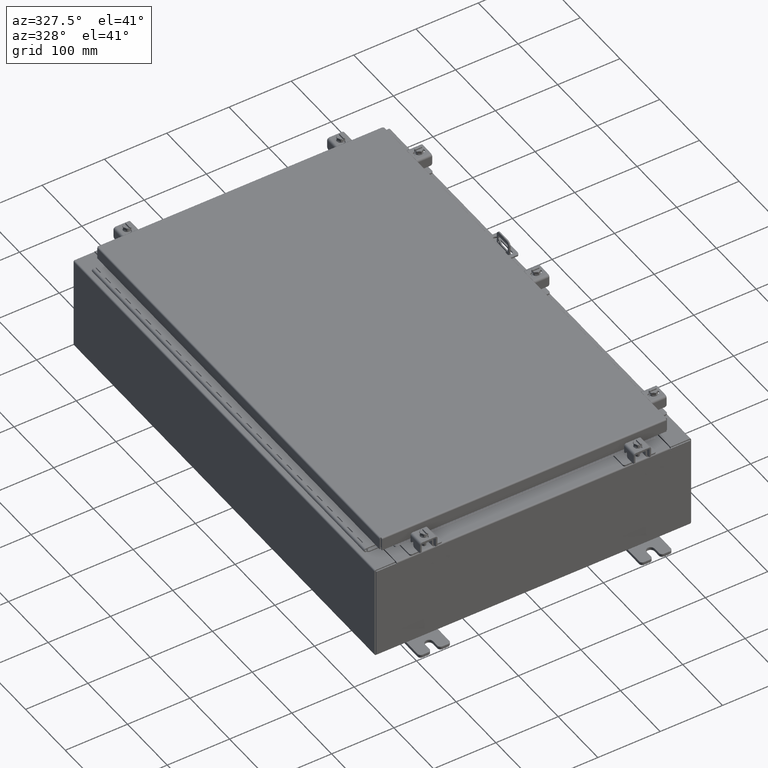
[diagram: clean part render]
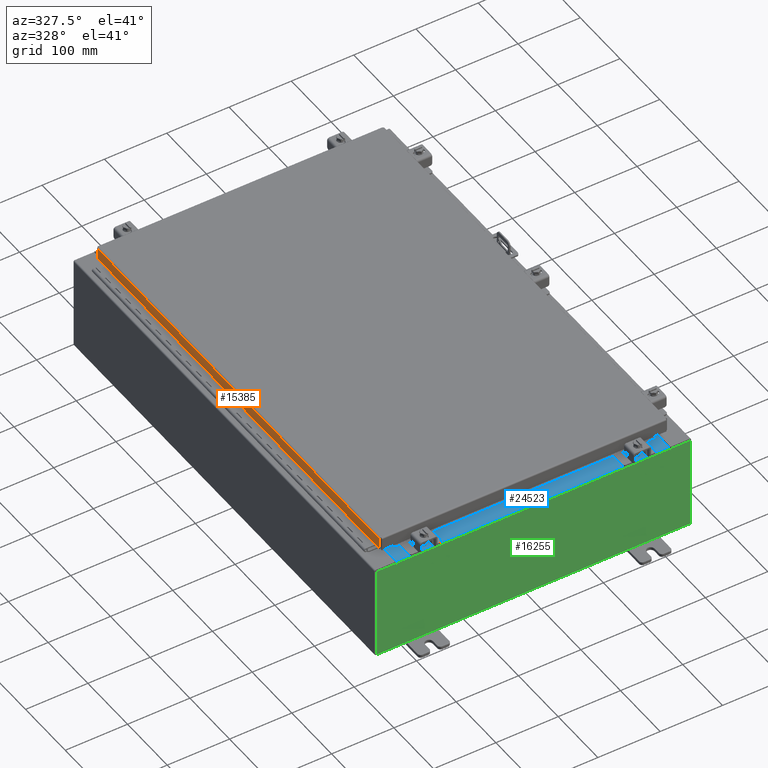
[diagram: same view with three faces highlighted in distinct colors, each labeled with its STEP entity id]
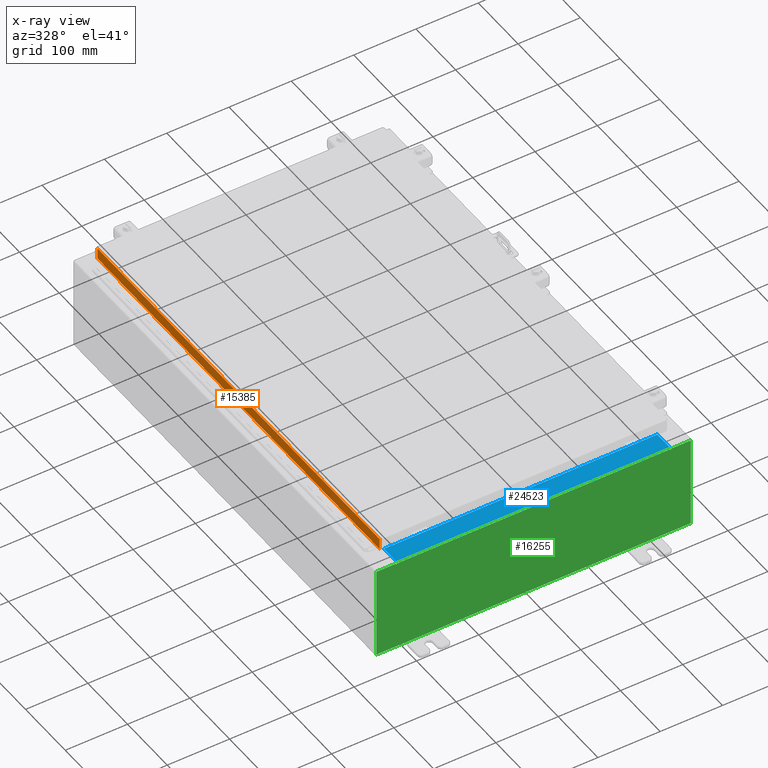
[diagram: x-ray of the same camera — body ghosted, the three highlighted faces saturated]
A machine part, auxiliary view with three faces highlighted in distinct colors.
The next image is the same camera in x-ray (body ghosted, the three faces saturated) — at least one of them is partly hidden behind the body in this view.
Their STEP definitions:

[orange] entity #15385 — the highlighted planar face has unit normal (1, 0, -0).
#1469 = LINE ( 'NONE', #34045, #12245 ) ;
#4339 = CARTESIAN_POINT ( 'NONE',  ( -9.077999999999997600, 14.00515786437626900, 1.256020718460122500E-013 ) ) ;
#6147 = FACE_OUTER_BOUND ( 'NONE', #28262, .T. ) ;
#8468 = CARTESIAN_POINT ( 'NONE',  ( -9.077999999999997600, -3.336764542172729700E-030, 2.780457718396846400E-014 ) ) ;
#9129 = ORIENTED_EDGE ( 'NONE', *, *, #20751, .F. ) ;
#10952 = ORIENTED_EDGE ( 'NONE', *, *, #31150, .F. ) ;
#11820 = EDGE_CURVE ( 'NONE', #17326, #21280, #24468, .T. ) ;
#12245 = VECTOR ( 'NONE', #34466, 39.37007874015748100 ) ;
#12631 = CARTESIAN_POINT ( 'NONE',  ( -9.077999999999997600, 14.00515786437626900, -0.08770000000000004200 ) ) ;
#13285 = DIRECTION ( 'NONE',  ( 3.675660434206577100E-031, -1.000000000000000000, -1.083515668565077200E-045 ) ) ;
#13877 = LINE ( 'NONE', #26205, #31252 ) ;
#13969 = ORIENTED_EDGE ( 'NONE', *, *, #11820, .F. ) ;
#15385 = ADVANCED_FACE ( 'NONE', ( #6147 ), #37538, .F. ) ;
#17176 = ORIENTED_EDGE ( 'NONE', *, *, #35342, .T. ) ;
#17326 = VERTEX_POINT ( 'NONE', #18589 ) ;
#17829 = DIRECTION ( 'NONE',  ( -3.034122441942816500E-015, 0.0000000000000000000, -1.000000000000000000 ) ) ;
#18589 = CARTESIAN_POINT ( 'NONE',  ( -9.077999999999997600, -14.00515786437626400, -0.08770000000000007000 ) ) ;
#20017 = LINE ( 'NONE', #4339, #28736 ) ;
#20253 = VERTEX_POINT ( 'NONE', #36528 ) ;
#20751 = EDGE_CURVE ( 'NONE', #21280, #20253, #1469, .T. ) ;
#21280 = VERTEX_POINT ( 'NONE', #22930 ) ;
#21591 = DIRECTION ( 'NONE',  ( -3.034122441942816500E-015, 6.982962677686265900E-015, -1.000000000000000000 ) ) ;
#22930 = CARTESIAN_POINT ( 'NONE',  ( -9.077999999999999400, -14.00515786437626200, -0.7949999999999996000 ) ) ;
#24468 = LINE ( 'NONE', #25399, #36440 ) ;
#24815 = DIRECTION ( 'NONE',  ( -3.034122441942816500E-015, 6.982962677686265900E-015, -1.000000000000000000 ) ) ;
#25399 = CARTESIAN_POINT ( 'NONE',  ( -9.077999999999997600, -14.00515786437626500, -0.07469999999999976700 ) ) ;
#26205 = CARTESIAN_POINT ( 'NONE',  ( -9.077999999999997600, -14.09399999999999600, -0.08770000000000004200 ) ) ;
#28262 = EDGE_LOOP ( 'NONE', ( #10952, #17176, #9129, #13969 ) ) ;
#28736 = VECTOR ( 'NONE', #24815, 39.37007874015748100 ) ;
#31150 = EDGE_CURVE ( 'NONE', #33934, #17326, #13877, .T. ) ;
#31252 = VECTOR ( 'NONE', #13285, 39.37007874015748100 ) ;
#31965 = AXIS2_PLACEMENT_3D ( 'NONE', #8468, #37297, #17829 ) ;
#33934 = VERTEX_POINT ( 'NONE', #12631 ) ;
#34045 = CARTESIAN_POINT ( 'NONE',  ( -9.077999999999999400, -14.09399999999999600, -0.7949999999999997100 ) ) ;
#34466 = DIRECTION ( 'NONE',  ( -4.379057701015054300E-047, 1.000000000000000000, 1.211441035930299800E-016 ) ) ;
#35342 = EDGE_CURVE ( 'NONE', #33934, #20253, #20017, .T. ) ;
#36440 = VECTOR ( 'NONE', #21591, 39.37007874015748100 ) ;
#36528 = CARTESIAN_POINT ( 'NONE',  ( -9.077999999999999400, 14.00515786437627400, -0.7949999999999962700 ) ) ;
#37297 = DIRECTION ( 'NONE',  ( 1.000000000000000000, 3.675660434206576600E-031, -3.034122441942816500E-015 ) ) ;
#37538 = PLANE ( 'NONE',  #31965 ) ;

[blue] entity #24523 — the highlighted planar face has unit normal (-0, -0, 1).
#454 = CARTESIAN_POINT ( 'NONE',  ( 0.0000000000000000000, 1.069354855923099900E-014, 3.000000000000000900 ) ) ;
#522 = LINE ( 'NONE', #8291, #25770 ) ;
#2180 = VERTEX_POINT ( 'NONE', #5913 ) ;
#3838 = VERTEX_POINT ( 'NONE', #25066 ) ;
#4649 = EDGE_CURVE ( 'NONE', #28949, #3838, #12717, .T. ) ;
#5092 = EDGE_CURVE ( 'NONE', #28949, #2180, #11940, .T. ) ;
#5913 = CARTESIAN_POINT ( 'NONE',  ( 8.637200000000000000, -1.287299999999999900, 3.000000000000005300 ) ) ;
#8291 = CARTESIAN_POINT ( 'NONE',  ( -8.637200000000000000, -0.07469999999999973900, 3.000000000000000900 ) ) ;
#8905 = ORIENTED_EDGE ( 'NONE', *, *, #21902, .F. ) ;
#9066 = PLANE ( 'NONE',  #31442 ) ;
#11717 = LINE ( 'NONE', #37253, #34172 ) ;
#11940 = LINE ( 'NONE', #30186, #30328 ) ;
#12717 = LINE ( 'NONE', #18981, #33620 ) ;
#13778 = DIRECTION ( 'NONE',  ( -0.0000000000000000000, -1.000000000000000000, 3.566381192773190000E-015 ) ) ;
#15596 = ORIENTED_EDGE ( 'NONE', *, *, #5092, .F. ) ;
#16007 = ORIENTED_EDGE ( 'NONE', *, *, #4649, .T. ) ;
#18186 = DIRECTION ( 'NONE',  ( -0.0000000000000000000, 1.000000000000000000, -3.566381192773190000E-015 ) ) ;
#18981 = CARTESIAN_POINT ( 'NONE',  ( -2.773851121247453900E-018, -0.08770000000000000000, 3.000000000000001300 ) ) ;
#21902 = EDGE_CURVE ( 'NONE', #22612, #3838, #522, .T. ) ;
#22612 = VERTEX_POINT ( 'NONE', #27695 ) ;
#23101 = DIRECTION ( 'NONE',  ( 0.0000000000000000000, 3.566381192773190000E-015, 1.000000000000000000 ) ) ;
#24141 = CARTESIAN_POINT ( 'NONE',  ( 8.637200000000000000, -0.08769999999999965300, 3.000000000000000900 ) ) ;
#24358 = ORIENTED_EDGE ( 'NONE', *, *, #36088, .F. ) ;
#24523 = ADVANCED_FACE ( 'NONE', ( #35268 ), #9066, .T. ) ;
#25066 = CARTESIAN_POINT ( 'NONE',  ( -8.637200000000000000, -0.08770000000000000000, 3.000000000000000900 ) ) ;
#25770 = VECTOR ( 'NONE', #18186, 39.37007874015748100 ) ;
#27695 = CARTESIAN_POINT ( 'NONE',  ( -8.637200000000000000, -1.287299999999999200, 3.000000000000005300 ) ) ;
#27965 = DIRECTION ( 'NONE',  ( -1.000000000000000000, 3.162886113166609200E-017, -1.128005754888089100E-031 ) ) ;
#28949 = VERTEX_POINT ( 'NONE', #24141 ) ;
#30186 = CARTESIAN_POINT ( 'NONE',  ( 8.637200000000000000, -1.300299999999999800, 3.000000000000005300 ) ) ;
#30328 = VECTOR ( 'NONE', #13778, 39.37007874015748100 ) ;
#30344 = EDGE_LOOP ( 'NONE', ( #8905, #24358, #15596, #16007 ) ) ;
#30923 = DIRECTION ( 'NONE',  ( 0.0000000000000000000, -1.000000000000000000, 3.566381192773190000E-015 ) ) ;
#31442 = AXIS2_PLACEMENT_3D ( 'NONE', #454, #23101, #30923 ) ;
#33620 = VECTOR ( 'NONE', #27965, 39.37007874015748100 ) ;
#34172 = VECTOR ( 'NONE', #34296, 39.37007874015748100 ) ;
#34296 = DIRECTION ( 'NONE',  ( -1.000000000000000000, 0.0000000000000000000, 0.0000000000000000000 ) ) ;
#35268 = FACE_OUTER_BOUND ( 'NONE', #30344, .T. ) ;
#36088 = EDGE_CURVE ( 'NONE', #2180, #22612, #11717, .T. ) ;
#37253 = CARTESIAN_POINT ( 'NONE',  ( 8.637200000000000000, -1.287299999999999900, 3.000000000000005300 ) ) ;

[green] entity #16255 — the highlighted planar face has unit normal (-0, 1, -0).
#130 = ORIENTED_EDGE ( 'NONE', *, *, #30859, .F. ) ;
#323 = AXIS2_PLACEMENT_3D ( 'NONE', #1770, #19673, #25433 ) ;
#734 = VERTEX_POINT ( 'NONE', #28620 ) ;
#1147 = VERTEX_POINT ( 'NONE', #21977 ) ;
#1571 = ORIENTED_EDGE ( 'NONE', *, *, #37172, .F. ) ;
#1645 = ORIENTED_EDGE ( 'NONE', *, *, #5262, .T. ) ;
#1770 = CARTESIAN_POINT ( 'NONE',  ( 0.0000000000000000000, 0.0000000000000000000, 0.0000000000000000000 ) ) ;
#1797 = EDGE_CURVE ( 'NONE', #8697, #3264, #19403, .T. ) ;
#2116 = VECTOR ( 'NONE', #14074, 39.37007874015748100 ) ;
#3264 = VERTEX_POINT ( 'NONE', #19226 ) ;
#3842 = VECTOR ( 'NONE', #30056, 39.37007874015748100 ) ;
#4280 = EDGE_CURVE ( 'NONE', #31658, #37245, #23929, .T. ) ;
#4702 = DIRECTION ( 'NONE',  ( -1.000000000000000000, -0.0000000000000000000, -0.0000000000000000000 ) ) ;
#5262 = EDGE_CURVE ( 'NONE', #10926, #19727, #29521, .T. ) ;
#5316 = CARTESIAN_POINT ( 'NONE',  ( -9.925300000000000000, 0.0000000000000000000, 2.925300000000000500 ) ) ;
#5502 = DIRECTION ( 'NONE',  ( -6.510859170600007400E-014, 0.0000000000000000000, -1.000000000000000000 ) ) ;
#5540 = VECTOR ( 'NONE', #23627, 39.37007874015748100 ) ;
#5622 = LINE ( 'NONE', #30078, #22094 ) ;
#5887 = ORIENTED_EDGE ( 'NONE', *, *, #4280, .T. ) ;
#5991 = CARTESIAN_POINT ( 'NONE',  ( -8.674549999999996400, 0.0000000000000000000, 2.874950000000000600 ) ) ;
#6050 = EDGE_CURVE ( 'NONE', #734, #6763, #19792, .T. ) ;
#6763 = VERTEX_POINT ( 'NONE', #29933 ) ;
#7101 = VECTOR ( 'NONE', #37648, 39.37007874015748100 ) ;
#7135 = DIRECTION ( 'NONE',  ( -0.0000000000000000000, 1.000000000000000000, -0.0000000000000000000 ) ) ;
#7579 = PLANE ( 'NONE',  #323 ) ;
#7679 = VECTOR ( 'NONE', #4702, 39.37007874015748100 ) ;
#8159 = VECTOR ( 'NONE', #36762, 39.37007874015748100 ) ;
#8308 = EDGE_CURVE ( 'NONE', #3264, #10926, #10724, .T. ) ;
#8440 = CARTESIAN_POINT ( 'NONE',  ( 9.925300000000000000, 0.0000000000000000000, 2.925300000000000500 ) ) ;
#8697 = VERTEX_POINT ( 'NONE', #25506 ) ;
#9111 = CARTESIAN_POINT ( 'NONE',  ( -8.637199999999996400, -0.0000000000000000000, 0.0000000000000000000 ) ) ;
#9325 = ORIENTED_EDGE ( 'NONE', *, *, #1797, .T. ) ;
#9722 = VERTEX_POINT ( 'NONE', #20261 ) ;
#10724 = LINE ( 'NONE', #31503, #3842 ) ;
#10926 = VERTEX_POINT ( 'NONE', #30725 ) ;
#10967 = CARTESIAN_POINT ( 'NONE',  ( 8.655875000000000000, 0.0000000000000000000, 2.874950000000000600 ) ) ;
#11235 = ORIENTED_EDGE ( 'NONE', *, *, #6050, .F. ) ;
#11310 = DIRECTION ( 'NONE',  ( 1.000000000000000000, 0.0000000000000000000, 0.0000000000000000000 ) ) ;
#11436 = VERTEX_POINT ( 'NONE', #8440 ) ;
#12775 = CARTESIAN_POINT ( 'NONE',  ( -8.637199999999996400, 1.024442997624098700E-016, 2.912300000000000600 ) ) ;
#12910 = ORIENTED_EDGE ( 'NONE', *, *, #19483, .F. ) ;
#13396 = CARTESIAN_POINT ( 'NONE',  ( 9.925300000000000000, 0.0000000000000000000, 2.925300000000000500 ) ) ;
#14074 = DIRECTION ( 'NONE',  ( 0.0000000000000000000, 0.0000000000000000000, 1.000000000000000000 ) ) ;
#14532 = ORIENTED_EDGE ( 'NONE', *, *, #8308, .T. ) ;
#15303 = EDGE_CURVE ( 'NONE', #11436, #8697, #25868, .T. ) ;
#15350 = EDGE_CURVE ( 'NONE', #9722, #11436, #30408, .T. ) ;
#16208 = CARTESIAN_POINT ( 'NONE',  ( -8.674549999999996400, -0.0000000000000000000, 0.0000000000000000000 ) ) ;
#16255 = ADVANCED_FACE ( 'NONE', ( #34896 ), #7579, .F. ) ;
#16868 = CARTESIAN_POINT ( 'NONE',  ( -8.637200000000000000, 1.024442997624098700E-016, 2.912300000000000600 ) ) ;
#17116 = LINE ( 'NONE', #9111, #24868 ) ;
#19226 = CARTESIAN_POINT ( 'NONE',  ( -9.925300000000000000, 0.0000000000000000000, -2.925299999999999600 ) ) ;
#19376 = DIRECTION ( 'NONE',  ( -0.0000000000000000000, 1.000000000000000000, -0.0000000000000000000 ) ) ;
#19403 = LINE ( 'NONE', #37282, #7679 ) ;
#19483 = EDGE_CURVE ( 'NONE', #9722, #734, #5622, .T. ) ;
#19673 = DIRECTION ( 'NONE',  ( 0.0000000000000000000, -1.000000000000000000, 0.0000000000000000000 ) ) ;
#19727 = VERTEX_POINT ( 'NONE', #31061 ) ;
#19792 = CIRCLE ( 'NONE', #36412, 0.01867500000000003900 ) ;
#19877 = DIRECTION ( 'NONE',  ( 0.0000000000000000000, 0.0000000000000000000, -1.000000000000000000 ) ) ;
#19999 = AXIS2_PLACEMENT_3D ( 'NONE', #24624, #7135, #27568 ) ;
#20261 = CARTESIAN_POINT ( 'NONE',  ( 8.674550000000001800, 0.0000000000000000000, 2.925300000000000500 ) ) ;
#21562 = DIRECTION ( 'NONE',  ( 0.0000000000000000000, 0.0000000000000000000, -1.000000000000000000 ) ) ;
#21968 = CARTESIAN_POINT ( 'NONE',  ( -9.925300000000000000, 0.0000000000000000000, 2.925300000000000500 ) ) ;
#21977 = CARTESIAN_POINT ( 'NONE',  ( -8.637199999999996400, -0.0000000000000000000, 2.874950000000000600 ) ) ;
#22094 = VECTOR ( 'NONE', #5502, 39.37007874015748100 ) ;
#22651 = ORIENTED_EDGE ( 'NONE', *, *, #15350, .T. ) ;
#23627 = DIRECTION ( 'NONE',  ( 0.0000000000000000000, 0.0000000000000000000, 1.000000000000000000 ) ) ;
#23644 = LINE ( 'NONE', #27692, #2116 ) ;
#23929 = LINE ( 'NONE', #16868, #8159 ) ;
#24075 = EDGE_CURVE ( 'NONE', #6763, #37245, #23644, .T. ) ;
#24624 = CARTESIAN_POINT ( 'NONE',  ( -8.655874999999996400, 0.0000000000000000000, 2.874950000000000600 ) ) ;
#24693 = EDGE_LOOP ( 'NONE', ( #25846, #1571, #130, #5887, #37305, #11235, #12910, #22651, #33606, #9325, #14532, #1645 ) ) ;
#24868 = VECTOR ( 'NONE', #21562, 39.37007874015748100 ) ;
#25433 = DIRECTION ( 'NONE',  ( 0.0000000000000000000, -0.0000000000000000000, -1.000000000000000000 ) ) ;
#25506 = CARTESIAN_POINT ( 'NONE',  ( 9.925300000000000000, 0.0000000000000000000, -2.925299999999999600 ) ) ;
#25846 = ORIENTED_EDGE ( 'NONE', *, *, #28348, .F. ) ;
#25868 = LINE ( 'NONE', #13396, #7101 ) ;
#26237 = DIRECTION ( 'NONE',  ( 1.000000000000000000, 0.0000000000000000000, 0.0000000000000000000 ) ) ;
#26679 = LINE ( 'NONE', #16208, #5540 ) ;
#27568 = DIRECTION ( 'NONE',  ( 0.0000000000000000000, 0.0000000000000000000, -1.000000000000000000 ) ) ;
#27692 = CARTESIAN_POINT ( 'NONE',  ( 8.637200000000000000, 0.0000000000000000000, 0.0000000000000000000 ) ) ;
#28348 = EDGE_CURVE ( 'NONE', #33758, #19727, #26679, .T. ) ;
#28604 = VECTOR ( 'NONE', #11310, 39.37007874015748100 ) ;
#28620 = CARTESIAN_POINT ( 'NONE',  ( 8.674550000000000000, 0.0000000000000000000, 2.874950000000000600 ) ) ;
#29521 = LINE ( 'NONE', #21968, #32308 ) ;
#29933 = CARTESIAN_POINT ( 'NONE',  ( 8.637200000000000000, 0.0000000000000000000, 2.874950000000000600 ) ) ;
#30056 = DIRECTION ( 'NONE',  ( -0.0000000000000000000, -0.0000000000000000000, 1.000000000000000000 ) ) ;
#30078 = CARTESIAN_POINT ( 'NONE',  ( 8.674549999999813500, -0.0000000000000000000, -5.647877341832707700E-013 ) ) ;
#30408 = LINE ( 'NONE', #5316, #28604 ) ;
#30725 = CARTESIAN_POINT ( 'NONE',  ( -9.925300000000000000, 0.0000000000000000000, 2.925300000000000500 ) ) ;
#30859 = EDGE_CURVE ( 'NONE', #31658, #1147, #17116, .T. ) ;
#31061 = CARTESIAN_POINT ( 'NONE',  ( -8.674549999999996400, 0.0000000000000000000, 2.925300000000000500 ) ) ;
#31503 = CARTESIAN_POINT ( 'NONE',  ( -9.925300000000000000, 0.0000000000000000000, 2.925300000000000500 ) ) ;
#31658 = VERTEX_POINT ( 'NONE', #12775 ) ;
#32243 = CIRCLE ( 'NONE', #19999, 0.01867500000000003900 ) ;
#32308 = VECTOR ( 'NONE', #26237, 39.37007874015748100 ) ;
#33606 = ORIENTED_EDGE ( 'NONE', *, *, #15303, .T. ) ;
#33717 = CARTESIAN_POINT ( 'NONE',  ( 8.637200000000000000, 0.0000000000000000000, 2.912300000000000600 ) ) ;
#33758 = VERTEX_POINT ( 'NONE', #5991 ) ;
#34896 = FACE_OUTER_BOUND ( 'NONE', #24693, .T. ) ;
#36412 = AXIS2_PLACEMENT_3D ( 'NONE', #10967, #19376, #19877 ) ;
#36762 = DIRECTION ( 'NONE',  ( 1.000000000000000000, 0.0000000000000000000, 0.0000000000000000000 ) ) ;
#37172 = EDGE_CURVE ( 'NONE', #1147, #33758, #32243, .T. ) ;
#37245 = VERTEX_POINT ( 'NONE', #33717 ) ;
#37282 = CARTESIAN_POINT ( 'NONE',  ( -9.925300000000000000, 0.0000000000000000000, -2.925299999999999600 ) ) ;
#37305 = ORIENTED_EDGE ( 'NONE', *, *, #24075, .F. ) ;
#37648 = DIRECTION ( 'NONE',  ( 0.0000000000000000000, 0.0000000000000000000, -1.000000000000000000 ) ) ;